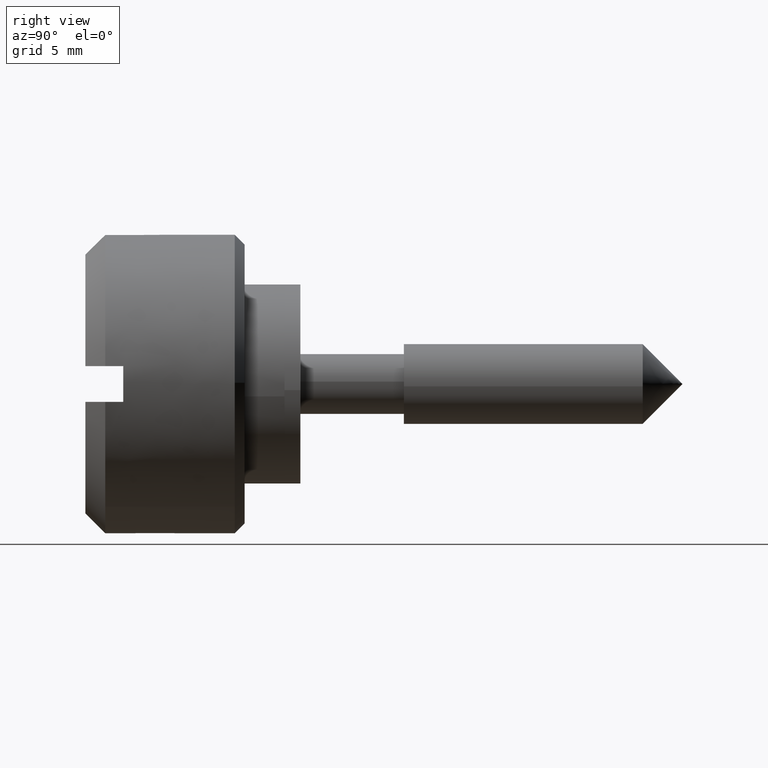
[diagram: clean part render]
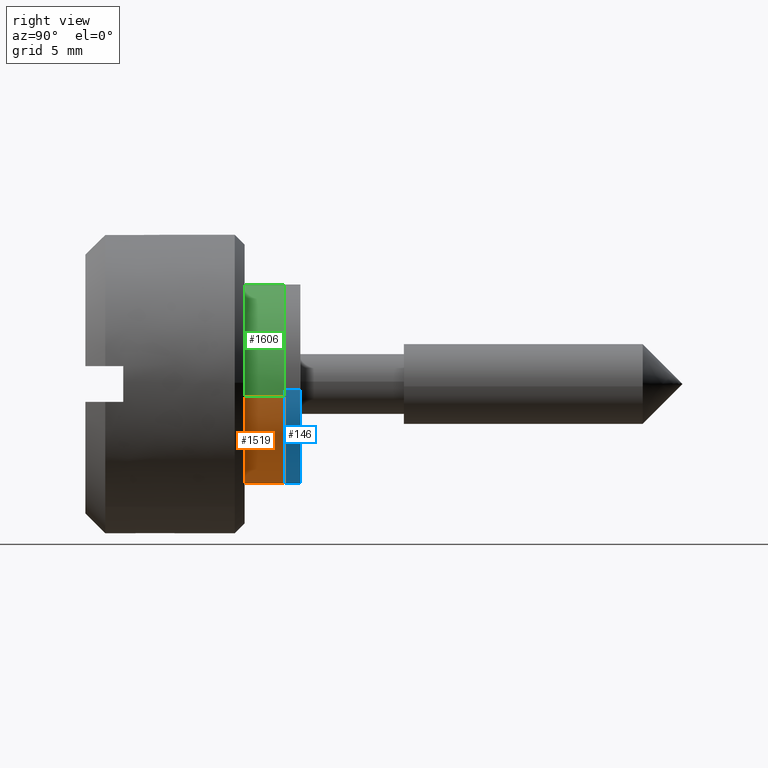
[diagram: same view with three faces highlighted in distinct colors, each labeled with its STEP entity id]
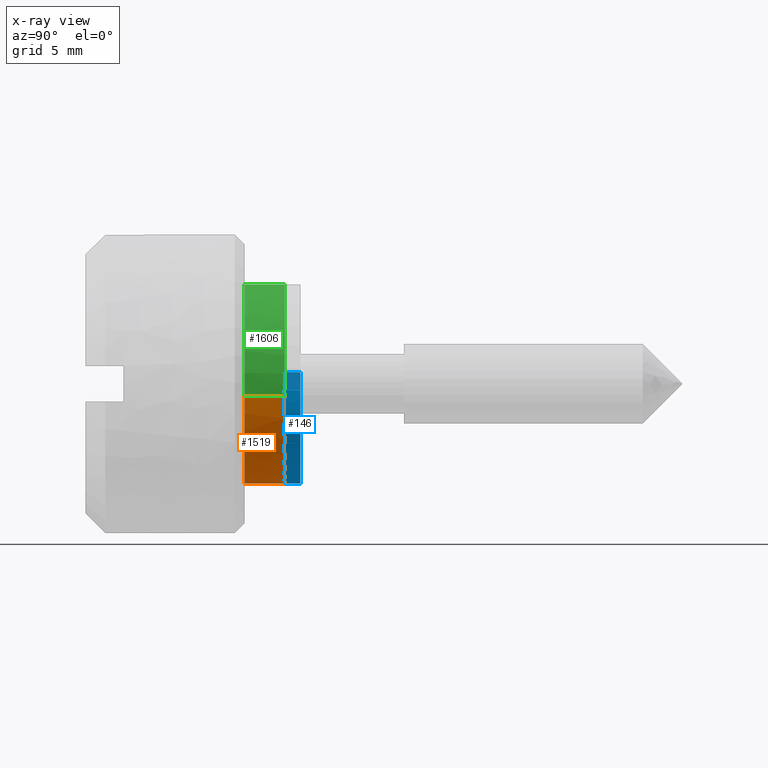
[diagram: x-ray of the same camera — body ghosted, the three highlighted faces saturated]
A machine part, right view with three faces highlighted in distinct colors.
The next image is the same camera in x-ray (body ghosted, the three faces saturated) — at least one of them is partly hidden behind the body in this view.
Their STEP definitions:

[orange] entity #1519 — the highlighted face is a freeform B-spline surface patch.
#1421=CARTESIAN_POINT('',(-2.050000000000000,-4.961331069127693,-0.620640010399146));
#1422=CARTESIAN_POINT('',(-2.050000000000000,-4.408656290666105,-5.038664152512223));
#1423=CARTESIAN_POINT('',(-2.050000000000000,0.043632677491869,-4.999809615320855));
#1424=CARTESIAN_POINT('',(-2.050000000000001,5.043442292812725,-4.956176937828985));
#1425=CARTESIAN_POINT('',(-2.050000000000000,4.999809615320855,0.043632677491869));
#1426=CARTESIAN_POINT('',(0.051250000000000,-4.961331069127693,-0.620640010399146));
#1427=CARTESIAN_POINT('',(0.051250000000000,-4.408656290666105,-5.038664152512223));
#1428=CARTESIAN_POINT('',(0.051250000000000,0.043632677491869,-4.999809615320855));
#1429=CARTESIAN_POINT('',(0.051250000000000,5.043442292812725,-4.956176937828985));
#1430=CARTESIAN_POINT('',(0.051250000000000,4.999809615320855,0.043632677491869));
#1438=(BOUNDED_SURFACE()B_SPLINE_SURFACE(2,1,((#1421,#1426),(#1422,#1427),(#1423,#1428),(#1424,#1429),(#1425,#1430)),.UNSPECIFIED.,.F.,.F.,.U.)B_SPLINE_SURFACE_WITH_KNOTS((3,2,3),(2,2),(0.0,7.621529547664946,15.905800795126851),(0.0,2.101250000000000),.UNSPECIFIED.)GEOMETRIC_REPRESENTATION_ITEM()RATIONAL_B_SPLINE_SURFACE(((0.956886118190660,0.956886118190660),(0.730538238691624,0.730538238691624),(1.0,1.0),(0.707106781186548,0.707106781186548),(1.0,1.0)))REPRESENTATION_ITEM('')SURFACE());
#1439=CARTESIAN_POINT('',(-2.0,0.0,-5.0));
#1440=VERTEX_POINT('',#1439);
#1441=CARTESIAN_POINT('',(-1.999999999999941,-4.961331800268381,-0.620634165681364));
#1442=VERTEX_POINT('',#1441);
#1443=CARTESIAN_POINT('',(-2.0,0.0,-5.0));
#1444=CARTESIAN_POINT('',(-2.000000000000000,-4.413498240611791,-5.0));
#1445=CARTESIAN_POINT('',(-1.999999999999941,-4.961331800268381,-0.620634165681364));
#1453=(BOUNDED_CURVE()B_SPLINE_CURVE(2,(#1443,#1444,#1445),.UNSPECIFIED.,.F.,.U.)B_SPLINE_CURVE_WITH_KNOTS((3,3),(0.0,0.228526269703383),.UNSPECIFIED.)CURVE()GEOMETRIC_REPRESENTATION_ITEM()RATIONAL_B_SPLINE_CURVE((1.0,0.732264821132581,0.954005815824675))REPRESENTATION_ITEM(''));
#1454=EDGE_CURVE('',#1440,#1442,#1453,.T.);
#1455=ORIENTED_EDGE('',*,*,#1454,.F.);
#1456=CARTESIAN_POINT('',(-2.0,4.999809621617605,0.043631955943921));
#1457=VERTEX_POINT('',#1456);
#1458=CARTESIAN_POINT('',(-2.000000000000000,4.999809621617605,0.043631955943921));
#1459=CARTESIAN_POINT('',(-2.000000000000000,5.0,0.021816032514348));
#1460=CARTESIAN_POINT('',(-2.0,5.0,0.0));
#1461=CARTESIAN_POINT('',(-2.000000000000000,5.000000000000001,-5.000000000000001));
#1462=CARTESIAN_POINT('',(-2.0,0.0,-5.0));
#1470=(BOUNDED_CURVE()B_SPLINE_CURVE(2,(#1458,#1459,#1460,#1461,#1462),.UNSPECIFIED.,.F.,.U.)B_SPLINE_CURVE_WITH_KNOTS((3,2,3),(0.748460156505136,0.750000000000000,1.0),.UNSPECIFIED.)CURVE()GEOMETRIC_REPRESENTATION_ITEM()RATIONAL_B_SPLINE_CURVE((0.996414145758719,0.998195961129281,1.0,0.707106781186548,1.0))REPRESENTATION_ITEM(''));
#1471=EDGE_CURVE('',#1457,#1440,#1470,.T.);
#1472=ORIENTED_EDGE('',*,*,#1471,.F.);
#1473=CARTESIAN_POINT('',(-1.283695E-016,4.999809616055213,0.043632593342642));
#1474=VERTEX_POINT('',#1473);
#1475=CARTESIAN_POINT('',(-2.0,4.999809621617605,0.043631955943921));
#1476=CARTESIAN_POINT('',(-1.283695E-016,4.999809616055213,0.043632593342642));
#1477=QUASI_UNIFORM_CURVE('',1,(#1475,#1476),.UNSPECIFIED.,.F.,.U.);
#1478=EDGE_CURVE('',#1457,#1474,#1477,.T.);
#1479=ORIENTED_EDGE('',*,*,#1478,.T.);
#1480=CARTESIAN_POINT('',(0.0,0.0,-5.0));
#1481=VERTEX_POINT('',#1480);
#1482=CARTESIAN_POINT('',(0.0,0.0,-5.0));
#1483=CARTESIAN_POINT('',(0.0,5.000000000000001,-5.000000000000001));
#1484=CARTESIAN_POINT('',(0.0,5.0,0.0));
#1485=CARTESIAN_POINT('',(0.0,5.0,0.021816669949470));
#1486=CARTESIAN_POINT('',(-1.283695E-016,4.999809616055213,0.043632593342642));
#1494=(BOUNDED_CURVE()B_SPLINE_CURVE(2,(#1482,#1483,#1484,#1485,#1486),.UNSPECIFIED.,.F.,.U.)B_SPLINE_CURVE_WITH_KNOTS((3,2,3),(0.500000000000000,0.750000000000000,0.751539888405850),.UNSPECIFIED.)CURVE()GEOMETRIC_REPRESENTATION_ITEM()RATIONAL_B_SPLINE_CURVE((1.0,0.707106781186548,1.0,0.998195908512789,0.996414041822092))REPRESENTATION_ITEM(''));
#1495=EDGE_CURVE('',#1481,#1474,#1494,.T.);
#1496=ORIENTED_EDGE('',*,*,#1495,.F.);
#1497=CARTESIAN_POINT('',(2.175461E-016,-4.961331415376743,-0.620637242508065));
#1498=VERTEX_POINT('',#1497);
#1499=CARTESIAN_POINT('',(2.175461E-016,-4.961331415376743,-0.620637242508065));
#1500=CARTESIAN_POINT('',(0.0,-4.413495482198710,-5.0));
#1501=CARTESIAN_POINT('',(0.0,0.0,-5.0));
#1509=(BOUNDED_CURVE()B_SPLINE_CURVE(2,(#1499,#1500,#1501),.UNSPECIFIED.,.F.,.U.)B_SPLINE_CURVE_WITH_KNOTS((3,3),(0.271473834884343,0.500000000000000),.UNSPECIFIED.)CURVE()GEOMETRIC_REPRESENTATION_ITEM()RATIONAL_B_SPLINE_CURVE((0.954005612860047,0.732264943664723,1.0))REPRESENTATION_ITEM(''));
#1510=EDGE_CURVE('',#1498,#1481,#1509,.T.);
#1511=ORIENTED_EDGE('',*,*,#1510,.F.);
#1512=CARTESIAN_POINT('',(-1.999999999999941,-4.961331800268381,-0.620634165681364));
#1513=CARTESIAN_POINT('',(2.175461E-016,-4.961331415376743,-0.620637242508065));
#1514=QUASI_UNIFORM_CURVE('',1,(#1512,#1513),.UNSPECIFIED.,.F.,.U.);
#1515=EDGE_CURVE('',#1442,#1498,#1514,.T.);
#1516=ORIENTED_EDGE('',*,*,#1515,.F.);
#1517=EDGE_LOOP('',(#1455,#1472,#1479,#1496,#1511,#1516));
#1518=FACE_OUTER_BOUND('',#1517,.T.);
#1519=ADVANCED_FACE('',(#1518),#1438,.T.);

[blue] entity #146 — the highlighted face is a freeform B-spline surface patch.
#44=CARTESIAN_POINT('',(-4.965047631818332,0.820000000000024,0.590171173283792));
#45=CARTESIAN_POINT('',(-4.981938077243028,0.820000000000024,0.448073643189888));
#46=CARTESIAN_POINT('',(-4.990673992109334,0.820000000000024,0.305242697674285));
#47=CARTESIAN_POINT('',(-5.295916689783620,0.820000000000024,-4.685431294435048));
#48=CARTESIAN_POINT('',(-0.305242697674285,0.820000000000024,-4.990673992109334));
#49=CARTESIAN_POINT('',(4.685431294435048,0.820000000000024,-5.295916689783620));
#50=CARTESIAN_POINT('',(4.990673992109334,0.820000000000024,-0.305242697674285));
#51=CARTESIAN_POINT('',(-4.965047631818332,-0.020500000000001,0.590171173283792));
#52=CARTESIAN_POINT('',(-4.981938077243028,-0.020500000000001,0.448073643189888));
#53=CARTESIAN_POINT('',(-4.990673992109334,-0.020500000000001,0.305242697674285));
#54=CARTESIAN_POINT('',(-5.295916689783620,-0.020500000000001,-4.685431294435048));
#55=CARTESIAN_POINT('',(-0.305242697674285,-0.020500000000001,-4.990673992109334));
#56=CARTESIAN_POINT('',(4.685431294435048,-0.020500000000001,-5.295916689783620));
#57=CARTESIAN_POINT('',(4.990673992109334,-0.020500000000001,-0.305242697674285));
#65=(BOUNDED_SURFACE()B_SPLINE_SURFACE(2,1,((#44,#51),(#45,#52),(#46,#53),(#47,#54),(#48,#55),(#49,#56),(#50,#57)),.UNSPECIFIED.,.F.,.F.,.U.)B_SPLINE_SURFACE_WITH_KNOTS((3,2,2,3),(2,2),(0.0,0.331370849898476,8.615642097360375,16.899913344822270),(0.0,1.0),.UNSPECIFIED.)GEOMETRIC_REPRESENTATION_ITEM()RATIONAL_B_SPLINE_SURFACE(((0.977505800795127,0.977505800795127),(0.988284271247462,0.988284271247462),(1.0,1.0),(0.707106781186548,0.707106781186548),(1.0,1.0),(0.707106781186548,0.707106781186548),(1.0,1.0)))REPRESENTATION_ITEM('')SURFACE());
#66=CARTESIAN_POINT('',(-4.965048661236166,-7.204694E-014,0.590162512771588));
#67=VERTEX_POINT('',#66);
#68=CARTESIAN_POINT('',(0.0,0.0,-5.0));
#69=VERTEX_POINT('',#68);
#70=CARTESIAN_POINT('',(-4.965048661236166,-7.204694E-014,0.590162512771588));
#71=CARTESIAN_POINT('',(-5.0,0.0,0.296116222225667));
#72=CARTESIAN_POINT('',(-5.0,0.0,0.0));
#73=CARTESIAN_POINT('',(-5.000000000000001,0.0,-5.000000000000001));
#74=CARTESIAN_POINT('',(0.0,0.0,-5.0));
#82=(BOUNDED_CURVE()B_SPLINE_CURVE(2,(#70,#71,#72,#73,#74),.UNSPECIFIED.,.F.,.U.)B_SPLINE_CURVE_WITH_KNOTS((3,2,3),(0.229562768307348,0.250000000000000,0.500000000000000),.UNSPECIFIED.)CURVE()GEOMETRIC_REPRESENTATION_ITEM()RATIONAL_B_SPLINE_CURVE((0.956027331992503,0.976056293703611,1.0,0.707106781186548,1.0))REPRESENTATION_ITEM(''));
#83=EDGE_CURVE('',#67,#69,#82,.T.);
#84=ORIENTED_EDGE('',*,*,#83,.F.);
#85=CARTESIAN_POINT('',(-4.965048648533877,0.800000000000023,0.590162619637772));
#86=VERTEX_POINT('',#85);
#87=CARTESIAN_POINT('',(-4.965048648533877,0.800000000000023,0.590162619637772));
#88=CARTESIAN_POINT('',(-4.965048661236166,-7.204694E-014,0.590162512771588));
#89=QUASI_UNIFORM_CURVE('',1,(#87,#88),.UNSPECIFIED.,.F.,.U.);
#90=EDGE_CURVE('',#86,#67,#89,.T.);
#91=ORIENTED_EDGE('',*,*,#90,.F.);
#92=CARTESIAN_POINT('',(0.0,0.800000000000023,-5.0));
#93=VERTEX_POINT('',#92);
#94=CARTESIAN_POINT('',(-4.965048648533878,0.800000000000023,0.590162619637772));
#95=CARTESIAN_POINT('',(-5.0,0.800000000000023,0.296116276223619));
#96=CARTESIAN_POINT('',(-5.0,0.800000000000023,0.0));
#97=CARTESIAN_POINT('',(-5.000000000000001,0.800000000000023,-5.000000000000001));
#98=CARTESIAN_POINT('',(0.0,0.800000000000023,-5.0));
#106=(BOUNDED_CURVE()B_SPLINE_CURVE(2,(#94,#95,#96,#97,#98),.UNSPECIFIED.,.F.,.U.)B_SPLINE_CURVE_WITH_KNOTS((3,2,3),(0.229562764669772,0.250000000000000,0.500000000000000),.UNSPECIFIED.)CURVE()GEOMETRIC_REPRESENTATION_ITEM()RATIONAL_B_SPLINE_CURVE((0.956027324862686,0.976056289441926,1.0,0.707106781186548,1.0))REPRESENTATION_ITEM(''));
#107=EDGE_CURVE('',#86,#93,#106,.T.);
#108=ORIENTED_EDGE('',*,*,#107,.T.);
#109=CARTESIAN_POINT('',(4.990674121943006,0.800000000000023,-0.305240574897691));
#110=VERTEX_POINT('',#109);
#111=CARTESIAN_POINT('',(0.0,0.800000000000023,-5.0));
#112=CARTESIAN_POINT('',(4.703532338907813,0.800000000000023,-5.0));
#113=CARTESIAN_POINT('',(4.990674121943006,0.800000000000023,-0.305240574897691));
#121=(BOUNDED_CURVE()B_SPLINE_CURVE(2,(#111,#112,#113),.UNSPECIFIED.,.F.,.U.)B_SPLINE_CURVE_WITH_KNOTS((3,3),(0.500000000000000,0.739333035634522),.UNSPECIFIED.)CURVE()GEOMETRIC_REPRESENTATION_ITEM()RATIONAL_B_SPLINE_CURVE((1.0,0.719603907298441,0.976072198967465))REPRESENTATION_ITEM(''));
#122=EDGE_CURVE('',#93,#110,#121,.T.);
#123=ORIENTED_EDGE('',*,*,#122,.T.);
#124=CARTESIAN_POINT('',(4.990674123562575,5.593269E-014,-0.305240548417611));
#125=VERTEX_POINT('',#124);
#126=CARTESIAN_POINT('',(4.990674121943006,0.800000000000023,-0.305240574897691));
#127=CARTESIAN_POINT('',(4.990674123562575,5.593269E-014,-0.305240548417611));
#128=QUASI_UNIFORM_CURVE('',1,(#126,#127),.UNSPECIFIED.,.F.,.U.);
#129=EDGE_CURVE('',#110,#125,#128,.T.);
#130=ORIENTED_EDGE('',*,*,#129,.T.);
#131=CARTESIAN_POINT('',(0.0,0.0,-5.0));
#132=CARTESIAN_POINT('',(4.703532363910979,0.0,-5.0));
#133=CARTESIAN_POINT('',(4.990674123562576,5.593269E-014,-0.305240548417611));
#141=(BOUNDED_CURVE()B_SPLINE_CURVE(2,(#131,#132,#133),.UNSPECIFIED.,.F.,.U.)B_SPLINE_CURVE_WITH_KNOTS((3,3),(0.500000000000000,0.739333036550040),.UNSPECIFIED.)CURVE()GEOMETRIC_REPRESENTATION_ITEM()RATIONAL_B_SPLINE_CURVE((1.0,0.719603906225845,0.976072200929596))REPRESENTATION_ITEM(''));
#142=EDGE_CURVE('',#69,#125,#141,.T.);
#143=ORIENTED_EDGE('',*,*,#142,.F.);
#144=EDGE_LOOP('',(#84,#91,#108,#123,#130,#143));
#145=FACE_OUTER_BOUND('',#144,.T.);
#146=ADVANCED_FACE('',(#145),#65,.T.);

[green] entity #1606 — the highlighted face is a freeform B-spline surface patch.
#1441=CARTESIAN_POINT('',(-1.999999999999941,-4.961331800268381,-0.620634165681364));
#1442=VERTEX_POINT('',#1441);
#1456=CARTESIAN_POINT('',(-2.0,4.999809621617605,0.043631955943921));
#1457=VERTEX_POINT('',#1456);
#1473=CARTESIAN_POINT('',(-1.283695E-016,4.999809616055213,0.043632593342642));
#1474=VERTEX_POINT('',#1473);
#1475=CARTESIAN_POINT('',(-2.0,4.999809621617605,0.043631955943921));
#1476=CARTESIAN_POINT('',(-1.283695E-016,4.999809616055213,0.043632593342642));
#1477=QUASI_UNIFORM_CURVE('',1,(#1475,#1476),.UNSPECIFIED.,.F.,.U.);
#1478=EDGE_CURVE('',#1457,#1474,#1477,.T.);
#1497=CARTESIAN_POINT('',(2.175461E-016,-4.961331415376743,-0.620637242508065));
#1498=VERTEX_POINT('',#1497);
#1512=CARTESIAN_POINT('',(-1.999999999999941,-4.961331800268381,-0.620634165681364));
#1513=CARTESIAN_POINT('',(2.175461E-016,-4.961331415376743,-0.620637242508065));
#1514=QUASI_UNIFORM_CURVE('',1,(#1512,#1513),.UNSPECIFIED.,.F.,.U.);
#1515=EDGE_CURVE('',#1442,#1498,#1514,.T.);
#1520=CARTESIAN_POINT('',(-2.050000000000000,4.999809615320855,0.043632677491869));
#1521=CARTESIAN_POINT('',(-2.050000000000001,4.956176937828985,5.043442292812725));
#1522=CARTESIAN_POINT('',(-2.050000000000000,-0.043632677491869,4.999809615320855));
#1523=CARTESIAN_POINT('',(-2.050000000000001,-5.043442292812725,4.956176937828985));
#1524=CARTESIAN_POINT('',(-2.050000000000000,-4.999809615320855,-0.043632677491869));
#1525=CARTESIAN_POINT('',(-2.050000000000000,-4.997282156301378,-0.333250794790868));
#1526=CARTESIAN_POINT('',(-2.050000000000000,-4.961331069127693,-0.620640010399146));
#1527=CARTESIAN_POINT('',(0.051250000000000,4.999809615320855,0.043632677491869));
#1528=CARTESIAN_POINT('',(0.051250000000000,4.956176937828985,5.043442292812725));
#1529=CARTESIAN_POINT('',(0.051250000000000,-0.043632677491869,4.999809615320855));
#1530=CARTESIAN_POINT('',(0.051250000000000,-5.043442292812725,4.956176937828985));
#1531=CARTESIAN_POINT('',(0.051250000000000,-4.999809615320855,-0.043632677491869));
#1532=CARTESIAN_POINT('',(0.051250000000000,-4.997282156301378,-0.333250794790868));
#1533=CARTESIAN_POINT('',(0.051250000000000,-4.961331069127693,-0.620640010399146));
#1541=(BOUNDED_SURFACE()B_SPLINE_SURFACE(2,1,((#1520,#1527),(#1521,#1528),(#1522,#1529),(#1523,#1530),(#1524,#1531),(#1525,#1532),(#1526,#1533)),.UNSPECIFIED.,.F.,.F.,.U.)B_SPLINE_SURFACE_WITH_KNOTS((3,2,2,3),(2,2),(0.0,8.284271247461899,16.568542494923800,17.231284194720750),(0.0,2.101250000000000),.UNSPECIFIED.)GEOMETRIC_REPRESENTATION_ITEM()RATIONAL_B_SPLINE_SURFACE(((1.0,1.0),(0.707106781186548,0.707106781186548),(1.0,1.0),(0.707106781186548,0.707106781186548),(1.0,1.0),(0.976568542494924,0.976568542494924),(0.956886118190660,0.956886118190660)))REPRESENTATION_ITEM('')SURFACE());
#1542=CARTESIAN_POINT('',(-2.0,0.0,5.0));
#1543=VERTEX_POINT('',#1542);
#1544=CARTESIAN_POINT('',(-1.999999999999941,-4.961331800268381,-0.620634165681364));
#1545=CARTESIAN_POINT('',(-2.0,-5.0,-0.311521681099338));
#1546=CARTESIAN_POINT('',(-2.0,-5.0,0.0));
#1547=CARTESIAN_POINT('',(-2.000000000000000,-5.000000000000001,5.000000000000001));
#1548=CARTESIAN_POINT('',(-2.0,0.0,5.0));
#1556=(BOUNDED_CURVE()B_SPLINE_CURVE(2,(#1544,#1545,#1546,#1547,#1548),.UNSPECIFIED.,.F.,.U.)B_SPLINE_CURVE_WITH_KNOTS((3,2,3),(0.228526269703383,0.250000000000000,0.500000000000000),.UNSPECIFIED.)CURVE()GEOMETRIC_REPRESENTATION_ITEM()RATIONAL_B_SPLINE_CURVE((0.954005815824675,0.974841960053967,1.0,0.707106781186548,1.0))REPRESENTATION_ITEM(''));
#1557=EDGE_CURVE('',#1442,#1543,#1556,.T.);
#1558=ORIENTED_EDGE('',*,*,#1557,.F.);
#1559=ORIENTED_EDGE('',*,*,#1515,.T.);
#1560=CARTESIAN_POINT('',(0.0,0.0,5.0));
#1561=VERTEX_POINT('',#1560);
#1562=CARTESIAN_POINT('',(0.0,0.0,5.0));
#1563=CARTESIAN_POINT('',(0.0,-5.000000000000001,5.000000000000001));
#1564=CARTESIAN_POINT('',(0.0,-5.0,0.0));
#1565=CARTESIAN_POINT('',(0.0,-5.000000000000001,-0.311523237521277));
#1566=CARTESIAN_POINT('',(2.175461E-016,-4.961331415376743,-0.620637242508065));
#1574=(BOUNDED_CURVE()B_SPLINE_CURVE(2,(#1562,#1563,#1564,#1565,#1566),.UNSPECIFIED.,.F.,.U.)B_SPLINE_CURVE_WITH_KNOTS((3,2,3),(0.0,0.250000000000000,0.271473834884343),.UNSPECIFIED.)CURVE()GEOMETRIC_REPRESENTATION_ITEM()RATIONAL_B_SPLINE_CURVE((1.0,0.707106781186548,1.0,0.974841837521824,0.954005612860047))REPRESENTATION_ITEM(''));
#1575=EDGE_CURVE('',#1561,#1498,#1574,.T.);
#1576=ORIENTED_EDGE('',*,*,#1575,.F.);
#1577=CARTESIAN_POINT('',(-1.283695E-016,4.999809616055213,0.043632593342642));
#1578=CARTESIAN_POINT('',(0.0,4.956556219823743,4.999999999999999));
#1579=CARTESIAN_POINT('',(0.0,0.0,5.0));
#1587=(BOUNDED_CURVE()B_SPLINE_CURVE(2,(#1577,#1578,#1579),.UNSPECIFIED.,.F.,.U.)B_SPLINE_CURVE_WITH_KNOTS((3,3),(0.751539888405850,1.0),.UNSPECIFIED.)CURVE()GEOMETRIC_REPRESENTATION_ITEM()RATIONAL_B_SPLINE_CURVE((0.996414041822091,0.708910872673759,1.0))REPRESENTATION_ITEM(''));
#1588=EDGE_CURVE('',#1474,#1561,#1587,.T.);
#1589=ORIENTED_EDGE('',*,*,#1588,.F.);
#1590=ORIENTED_EDGE('',*,*,#1478,.F.);
#1591=CARTESIAN_POINT('',(-2.0,0.0,5.0));
#1592=CARTESIAN_POINT('',(-2.000000000000000,4.956557483641211,5.000000000000001));
#1593=CARTESIAN_POINT('',(-1.999999999999999,4.999809621617605,0.043631955943921));
#1601=(BOUNDED_CURVE()B_SPLINE_CURVE(2,(#1591,#1592,#1593),.UNSPECIFIED.,.F.,.U.)B_SPLINE_CURVE_WITH_KNOTS((3,3),(0.500000000000000,0.748460156505137),.UNSPECIFIED.)CURVE()GEOMETRIC_REPRESENTATION_ITEM()RATIONAL_B_SPLINE_CURVE((1.0,0.708910820057265,0.996414145758721))REPRESENTATION_ITEM(''));
#1602=EDGE_CURVE('',#1543,#1457,#1601,.T.);
#1603=ORIENTED_EDGE('',*,*,#1602,.F.);
#1604=EDGE_LOOP('',(#1558,#1559,#1576,#1589,#1590,#1603));
#1605=FACE_OUTER_BOUND('',#1604,.T.);
#1606=ADVANCED_FACE('',(#1605),#1541,.T.);